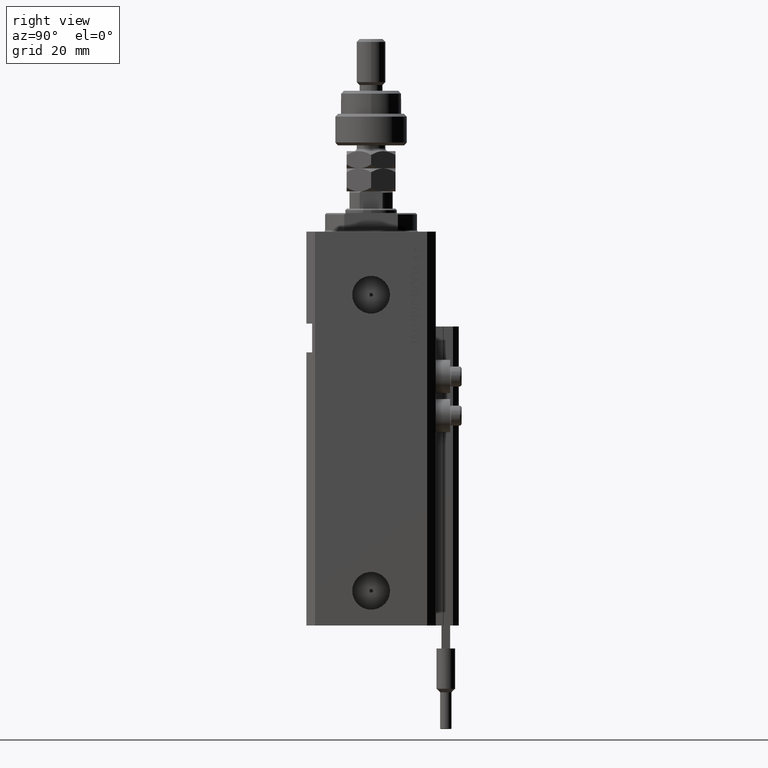
[diagram: clean part render]
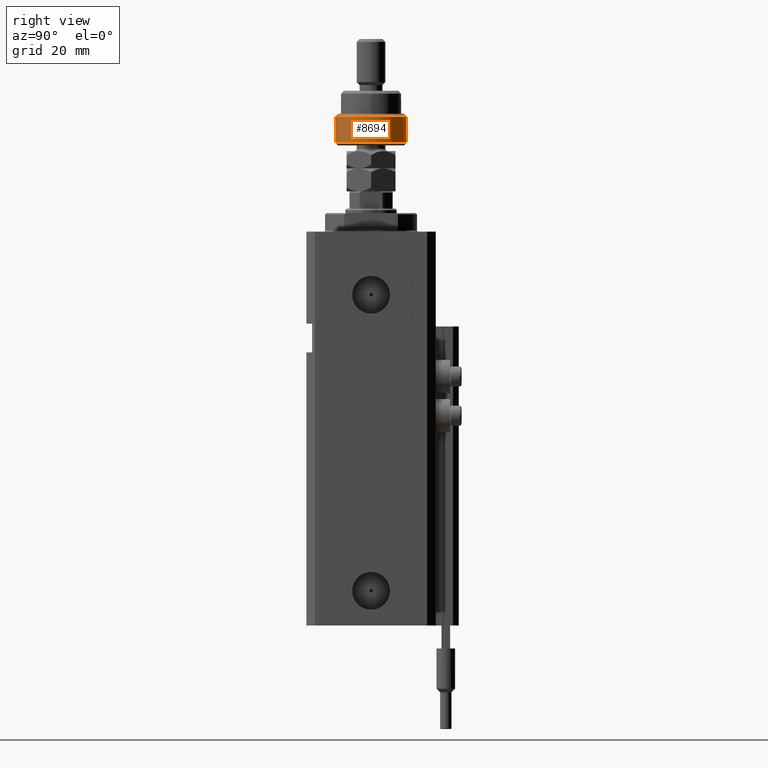
[diagram: same view with one face highlighted and labeled with its STEP entity id]
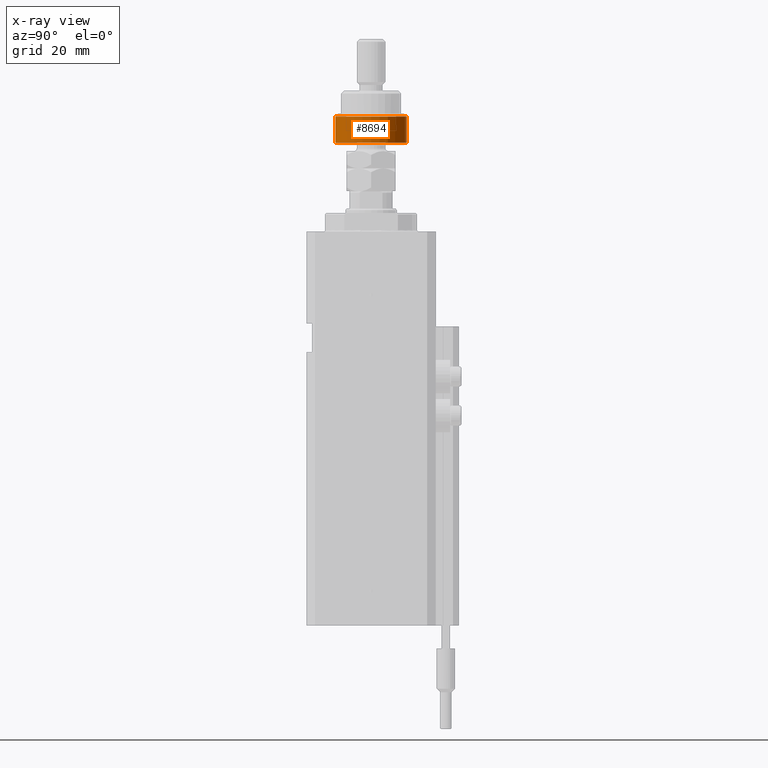
[diagram: x-ray of the same camera — body ghosted, the highlighted face saturated]
A machine part, right view. The second image highlights one B-rep face of the part: STEP entity #8694.
The next image is the same camera in x-ray: the body ghosted, the highlighted face saturated — about 0% of this face is hidden behind the body in this view.
In plain terms, the highlighted cylindrical surface (edge-blend (fillet) strip) has radius 12.5 mm, axis along (-0, -0, -1).
Its self-contained STEP definition (entity closure, byte-faithful):
#393 = CARTESIAN_POINT ( 'NONE',  ( -11.22497216032182443, 5.500000000000000000, 0.9999999999999956701 ) ) ;
#1222 = DIRECTION ( 'NONE',  ( -0.000000000000000000, -0.000000000000000000, -1.000000000000000000 ) ) ;
#2060 = CARTESIAN_POINT ( 'NONE',  ( -11.22497216032182443, 5.500000000000000000, 10.00000000000000000 ) ) ;
#3821 = CIRCLE ( 'NONE', #45667, 12.50000000000000000 ) ;
#6739 = VERTEX_POINT ( 'NONE', #14721 ) ;
#8663 = DIRECTION ( 'NONE',  ( 1.000000000000000000, 0.000000000000000000, 0.000000000000000000 ) ) ;
#8694 = ADVANCED_FACE ( 'NONE', ( #37158 ), #13269, .T. ) ;
#8763 = CARTESIAN_POINT ( 'NONE',  ( 12.50000000000000000, 0.000000000000000000, 0.9999999999999956701 ) ) ;
#8873 = AXIS2_PLACEMENT_3D ( 'NONE', #34775, #19265, #30835 ) ;
#10589 = CARTESIAN_POINT ( 'NONE',  ( -11.22497216032182443, 5.500000000000000000, 12.50000000000000000 ) ) ;
#10846 = DIRECTION ( 'NONE',  ( -0.000000000000000000, -0.000000000000000000, -1.000000000000000000 ) ) ;
#11206 = VERTEX_POINT ( 'NONE', #2060 ) ;
#12267 = VECTOR ( 'NONE', #34304, 1000.000000000000000 ) ;
#13162 = VECTOR ( 'NONE', #10846, 1000.000000000000000 ) ;
#13269 = CYLINDRICAL_SURFACE ( 'NONE', #28668, 12.50000000000000000 ) ;
#14721 = CARTESIAN_POINT ( 'NONE',  ( -11.22497216032182088, -5.500000000000007105, 10.00000000000000000 ) ) ;
#16196 = CARTESIAN_POINT ( 'NONE',  ( -11.22497216032182088, -5.500000000000007105, 0.9999999999999956701 ) ) ;
#17200 = DIRECTION ( 'NONE',  ( -1.000000000000000000, 0.000000000000000000, 0.000000000000000000 ) ) ;
#18463 = DIRECTION ( 'NONE',  ( -0.000000000000000000, -0.000000000000000000, 1.000000000000000000 ) ) ;
#19265 = DIRECTION ( 'NONE',  ( -0.000000000000000000, -0.000000000000000000, 1.000000000000000000 ) ) ;
#25601 = VERTEX_POINT ( 'NONE', #393 ) ;
#26422 = CARTESIAN_POINT ( 'NONE',  ( -11.22497216032182088, -5.500000000000007105, 12.50000000000000000 ) ) ;
#28599 = CARTESIAN_POINT ( 'NONE',  ( 0.000000000000000000, 0.000000000000000000, 10.00000000000000000 ) ) ;
#28668 = AXIS2_PLACEMENT_3D ( 'NONE', #48430, #1222, #17200 ) ;
#29460 = ORIENTED_EDGE ( 'NONE', *, *, #40147, .T. ) ;
#30381 = ORIENTED_EDGE ( 'NONE', *, *, #42881, .T. ) ;
#30835 = DIRECTION ( 'NONE',  ( 1.000000000000000000, 0.000000000000000000, 0.000000000000000000 ) ) ;
#31601 = VERTEX_POINT ( 'NONE', #8763 ) ;
#31675 = AXIS2_PLACEMENT_3D ( 'NONE', #38424, #18463, #49441 ) ;
#34304 = DIRECTION ( 'NONE',  ( -0.000000000000000000, -0.000000000000000000, -1.000000000000000000 ) ) ;
#34775 = CARTESIAN_POINT ( 'NONE',  ( 0.000000000000000000, 0.000000000000000000, 0.9999999999999956701 ) ) ;
#34778 = VERTEX_POINT ( 'NONE', #16196 ) ;
#34829 = CIRCLE ( 'NONE', #8873, 12.50000000000000000 ) ;
#37158 = FACE_OUTER_BOUND ( 'NONE', #39899, .T. ) ;
#38424 = CARTESIAN_POINT ( 'NONE',  ( 0.000000000000000000, 0.000000000000000000, 0.9999999999999956701 ) ) ;
#38494 = LINE ( 'NONE', #26422, #12267 ) ;
#39899 = EDGE_LOOP ( 'NONE', ( #47795, #29460, #30381, #41096, #50149 ) ) ;
#40147 = EDGE_CURVE ( 'NONE', #11206, #6739, #3821, .T. ) ;
#40549 = EDGE_CURVE ( 'NONE', #34778, #31601, #34829, .T. ) ;
#41096 = ORIENTED_EDGE ( 'NONE', *, *, #40549, .T. ) ;
#42881 = EDGE_CURVE ( 'NONE', #6739, #34778, #38494, .T. ) ;
#43646 = EDGE_CURVE ( 'NONE', #11206, #25601, #46519, .T. ) ;
#44593 = DIRECTION ( 'NONE',  ( 0.000000000000000000, 0.000000000000000000, -1.000000000000000000 ) ) ;
#44996 = EDGE_CURVE ( 'NONE', #31601, #25601, #46751, .T. ) ;
#45667 = AXIS2_PLACEMENT_3D ( 'NONE', #28599, #44593, #8663 ) ;
#46519 = LINE ( 'NONE', #10589, #13162 ) ;
#46751 = CIRCLE ( 'NONE', #31675, 12.50000000000000000 ) ;
#47795 = ORIENTED_EDGE ( 'NONE', *, *, #43646, .F. ) ;
#48430 = CARTESIAN_POINT ( 'NONE',  ( 0.000000000000000000, 0.000000000000000000, 11.00000000000000000 ) ) ;
#49441 = DIRECTION ( 'NONE',  ( 1.000000000000000000, 0.000000000000000000, 0.000000000000000000 ) ) ;
#50149 = ORIENTED_EDGE ( 'NONE', *, *, #44996, .T. ) ;